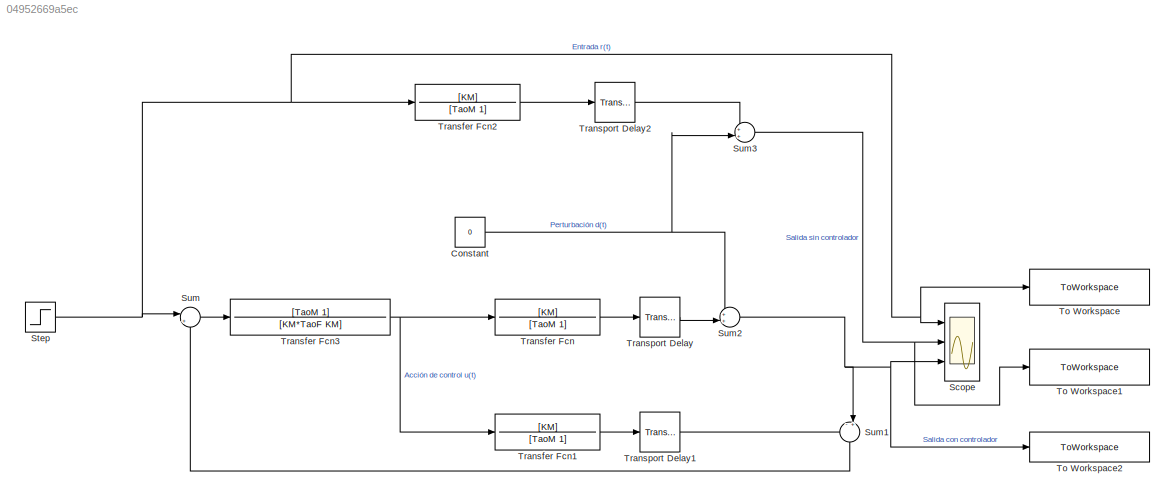
MODEL slx_04952669a5ec
KIND model
CONFIG AbsTol = auto
CONFIG EnableMultiTasking = off
CONFIG FixedStep = auto
CONFIG MaxStep = auto
CONFIG MinStep = auto
CONFIG RelTol = 1e-3
CONFIG SampleTimeConstraint = Unconstrained
CONFIG SolverName = VariableStepAuto
CONFIG StartTime = 0.0
CONFIG StopTime = 2
BLOCK [Constant] Constant
  Value = 0
BLOCK [Scope] Scope
  Floating = off
  NumInputPorts = 3
  Ports = [3]
  ScopeSpecificationString = Simulink.scopes.TimeScopeBlockCfg('CurrentConfiguration', extmgr.ConfigurationSet(extmgr.Configuration('Core','General UI',true),extmgr.Configuration('Core','Source UI',true),extmgr.Configuration('Sources','WiredSimulink',true),extmgr.Configuration('Visuals','Time Domain',true,'SerializedDisplays',{struct('MinYLimReal','-0.125','MaxYLimReal','1.125','YLabelReal','','MinYLimMag','0.00000','MaxYLimM...<+1410ch>
BLOCK [Step] Step
  After = Amplitud_referencia
  SampleTime = 0
  Time = Tiempo_escalon
BLOCK [Sum] Sum
  Inputs = |+-
  Ports = [2, 1]
BLOCK [Sum] Sum1
  Inputs = -+|
  NameLocation = left
  Ports = [2, 1]
BLOCK [Sum] Sum2
  Inputs = ++|
  Ports = [2, 1]
BLOCK [Sum] Sum3
  Inputs = ++|
  Ports = [2, 1]
BLOCK [ToWorkspace] To Workspace
  FixptAsFi = on
  MaxDataPoints = inf
  Ports = [1]
  SampleTime = -1
  SaveFormat = Timeseries
  VariableName = referencia1
BLOCK [ToWorkspace] To Workspace1
  FixptAsFi = on
  MaxDataPoints = inf
  Ports = [1]
  SampleTime = -1
  SaveFormat = Timeseries
  VariableName = salida_sin_controlador_1
BLOCK [ToWorkspace] To Workspace2
  FixptAsFi = on
  MaxDataPoints = inf
  Ports = [1]
  SampleTime = -1
  SaveFormat = Timeseries
  VariableName = salida_con_controlador_1
BLOCK [TransferFcn] Transfer Fcn
  Denominator = [TaoM 1]
  Numerator = [KM]
BLOCK [TransferFcn] Transfer Fcn1
  Denominator = [TaoM 1]
  Numerator = [KM]
BLOCK [TransferFcn] Transfer Fcn2
  Denominator = [TaoM 1]
  Numerator = [KM]
BLOCK [TransferFcn] Transfer Fcn3
  Denominator = [KM*TaoF KM]
  Numerator = [TaoM 1]
BLOCK [TransportDelay] Transport Delay
  DelayTime = TL
  Ports = [1, 1]
BLOCK [TransportDelay] Transport Delay1
  DelayTime = TL
  Ports = [1, 1]
BLOCK [TransportDelay] Transport Delay2
  DelayTime = TL
  Ports = [1, 1]
NET Constant:1 -> Sum2:1, Sum3:2
NET Step:1 -> Scope:1, Sum:1, To Workspace:1, Transfer Fcn2:1
LINE Sum1:1 -> Sum:2
NET Sum2:1 -> Scope:3, Sum1:2, To Workspace2:1
NET Sum3:1 -> Scope:2, To Workspace1:1
LINE Sum:1 -> Transfer Fcn3:1
LINE Transfer Fcn1:1 -> Transport Delay1:1
LINE Transfer Fcn2:1 -> Transport Delay2:1
NET Transfer Fcn3:1 -> Transfer Fcn1:1, Transfer Fcn:1
LINE Transfer Fcn:1 -> Transport Delay:1
LINE Transport Delay1:1 -> Sum1:1
LINE Transport Delay2:1 -> Sum3:1
LINE Transport Delay:1 -> Sum2:2
note: NET lines group one-source signal fan-out (src -> all destinations, sorted); 1:1 wires keep LINE
